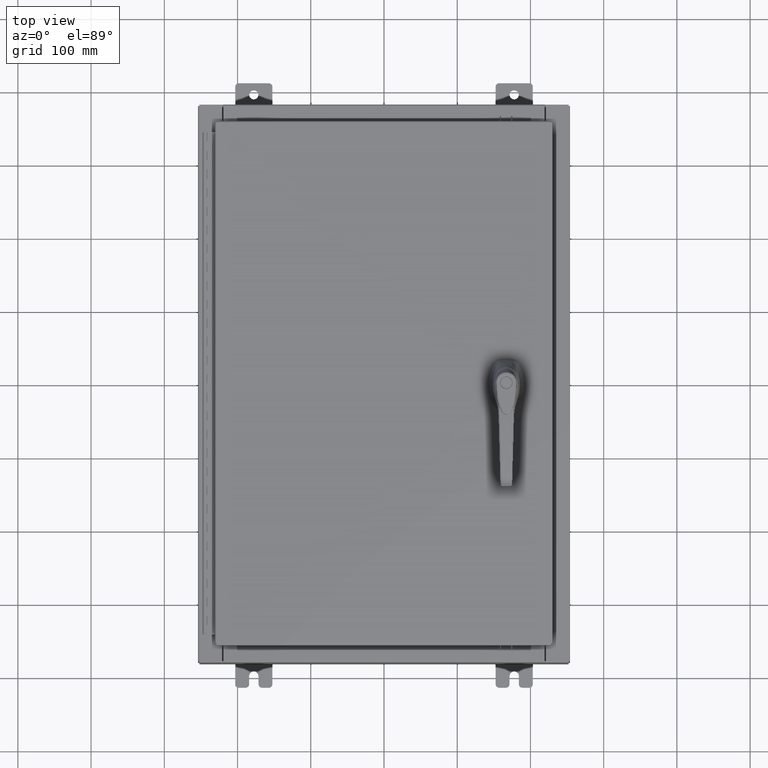
[diagram: clean part render]
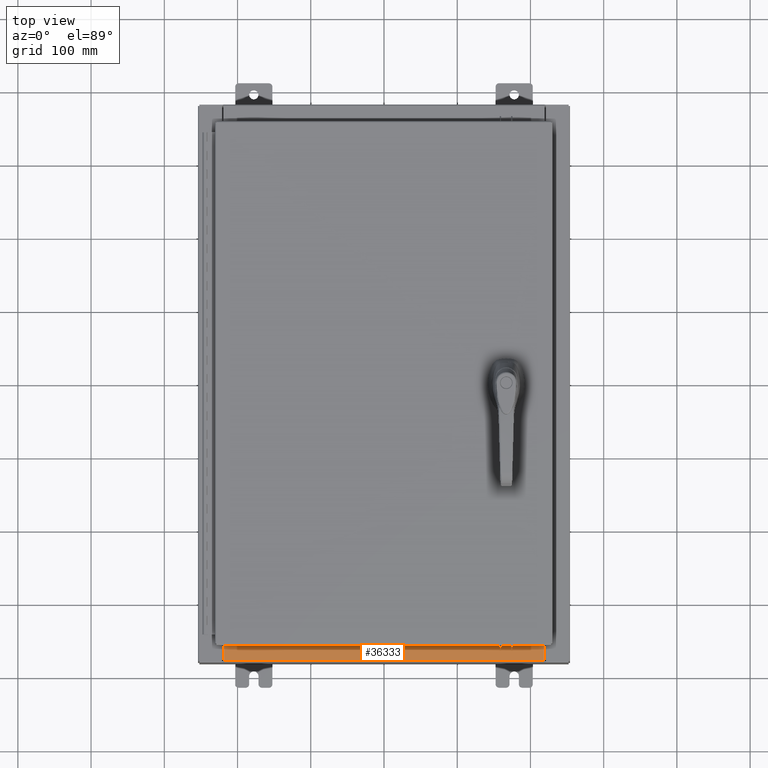
[diagram: same view with one face highlighted and labeled with its STEP entity id]
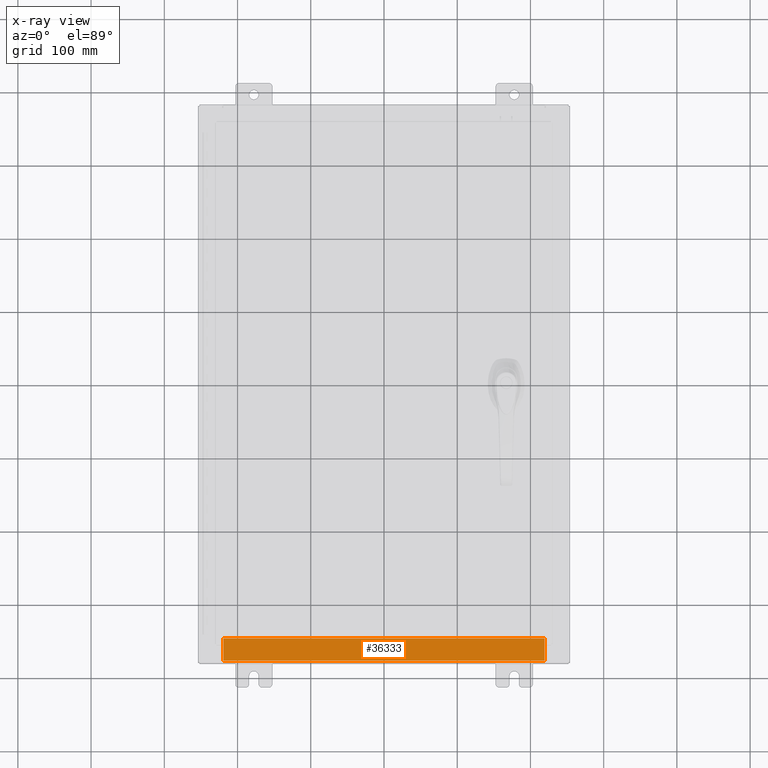
[diagram: x-ray of the same camera — body ghosted, the highlighted face saturated]
A machine part, top view. The second image highlights one B-rep face of the part: STEP entity #36333.
The next image is the same camera in x-ray: the body ghosted, the highlighted face saturated — about 0% of this face is hidden behind the body in this view.
In plain terms, the highlighted planar face has unit normal (-0, -0, 1).
Its self-contained STEP definition (entity closure, byte-faithful):
#230 = DIRECTION ( 'NONE',  ( -1.000000000000000000, 0.0000000000000000000, 0.0000000000000000000 ) ) ;
#10602 = EDGE_CURVE ( 'NONE', #115309, #45613, #75715, .T. ) ;
#15144 = CARTESIAN_POINT ( 'NONE',  ( 8.637200000000000000, -1.287299999999999900, 3.000000000000005300 ) ) ;
#15419 = VECTOR ( 'NONE', #230, 39.37007874015748100 ) ;
#23440 = VECTOR ( 'NONE', #34531, 39.37007874015748100 ) ;
#24058 = CARTESIAN_POINT ( 'NONE',  ( 8.637200000000000000, -0.08769999999999965300, 3.000000000000000900 ) ) ;
#26930 = ORIENTED_EDGE ( 'NONE', *, *, #96069, .F. ) ;
#28310 = PLANE ( 'NONE',  #97043 ) ;
#34140 = CARTESIAN_POINT ( 'NONE',  ( 8.637200000000000000, -1.300299999999999800, 3.000000000000005300 ) ) ;
#34531 = DIRECTION ( 'NONE',  ( -0.0000000000000000000, -1.000000000000000000, 3.566381192773190000E-015 ) ) ;
#36333 = ADVANCED_FACE ( 'NONE', ( #102645 ), #28310, .T. ) ;
#37473 = DIRECTION ( 'NONE',  ( 0.0000000000000000000, 3.566381192773190000E-015, 1.000000000000000000 ) ) ;
#38788 = DIRECTION ( 'NONE',  ( -1.000000000000000000, 3.162886113166609200E-017, -1.128005754888089100E-031 ) ) ;
#39896 = EDGE_LOOP ( 'NONE', ( #74579, #26930, #82370, #84062 ) ) ;
#40192 = DIRECTION ( 'NONE',  ( -0.0000000000000000000, 1.000000000000000000, -3.566381192773190000E-015 ) ) ;
#45613 = VERTEX_POINT ( 'NONE', #73512 ) ;
#46496 = CARTESIAN_POINT ( 'NONE',  ( 8.637200000000000000, -1.287299999999999900, 3.000000000000005300 ) ) ;
#46903 = LINE ( 'NONE', #50033, #68427 ) ;
#47786 = CARTESIAN_POINT ( 'NONE',  ( -8.637200000000000000, -0.07469999999999973900, 3.000000000000000900 ) ) ;
#50033 = CARTESIAN_POINT ( 'NONE',  ( -2.773851121247453900E-018, -0.08770000000000000000, 3.000000000000001300 ) ) ;
#51295 = VECTOR ( 'NONE', #40192, 39.37007874015748100 ) ;
#55024 = CARTESIAN_POINT ( 'NONE',  ( 0.0000000000000000000, 1.069354855923099900E-014, 3.000000000000000900 ) ) ;
#57412 = VERTEX_POINT ( 'NONE', #24058 ) ;
#63261 = EDGE_CURVE ( 'NONE', #57412, #106704, #72117, .T. ) ;
#67030 = CARTESIAN_POINT ( 'NONE',  ( -8.637200000000000000, -1.287299999999999200, 3.000000000000005300 ) ) ;
#68427 = VECTOR ( 'NONE', #38788, 39.37007874015748100 ) ;
#72117 = LINE ( 'NONE', #34140, #23440 ) ;
#73512 = CARTESIAN_POINT ( 'NONE',  ( -8.637200000000000000, -0.08770000000000000000, 3.000000000000000900 ) ) ;
#74579 = ORIENTED_EDGE ( 'NONE', *, *, #10602, .F. ) ;
#75715 = LINE ( 'NONE', #47786, #51295 ) ;
#82370 = ORIENTED_EDGE ( 'NONE', *, *, #63261, .F. ) ;
#84062 = ORIENTED_EDGE ( 'NONE', *, *, #87412, .T. ) ;
#85503 = LINE ( 'NONE', #46496, #15419 ) ;
#87412 = EDGE_CURVE ( 'NONE', #57412, #45613, #46903, .T. ) ;
#96069 = EDGE_CURVE ( 'NONE', #106704, #115309, #85503, .T. ) ;
#97043 = AXIS2_PLACEMENT_3D ( 'NONE', #55024, #37473, #101581 ) ;
#101581 = DIRECTION ( 'NONE',  ( 0.0000000000000000000, -1.000000000000000000, 3.566381192773190000E-015 ) ) ;
#102645 = FACE_OUTER_BOUND ( 'NONE', #39896, .T. ) ;
#106704 = VERTEX_POINT ( 'NONE', #15144 ) ;
#115309 = VERTEX_POINT ( 'NONE', #67030 ) ;